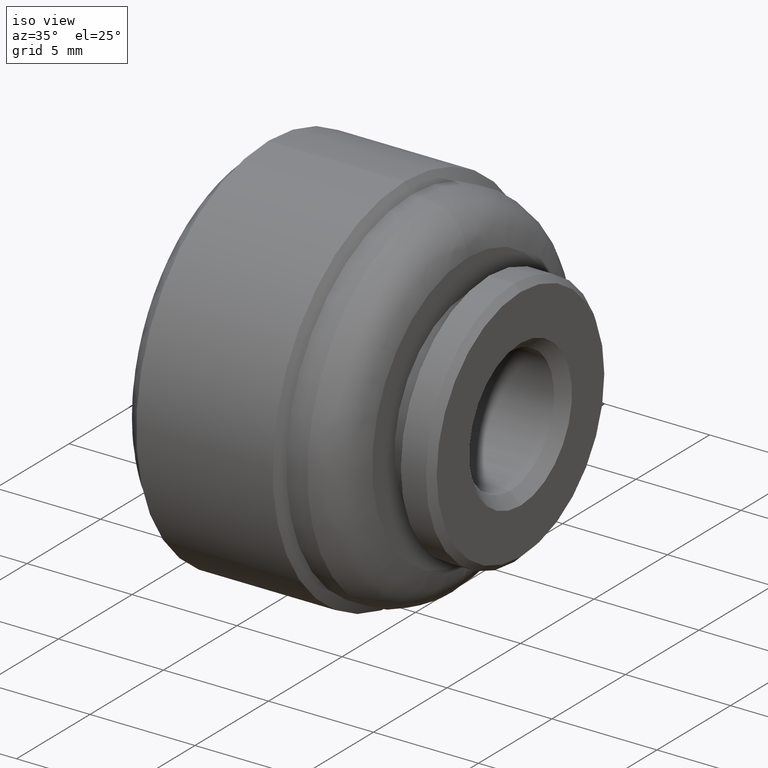
[diagram: clean part render]
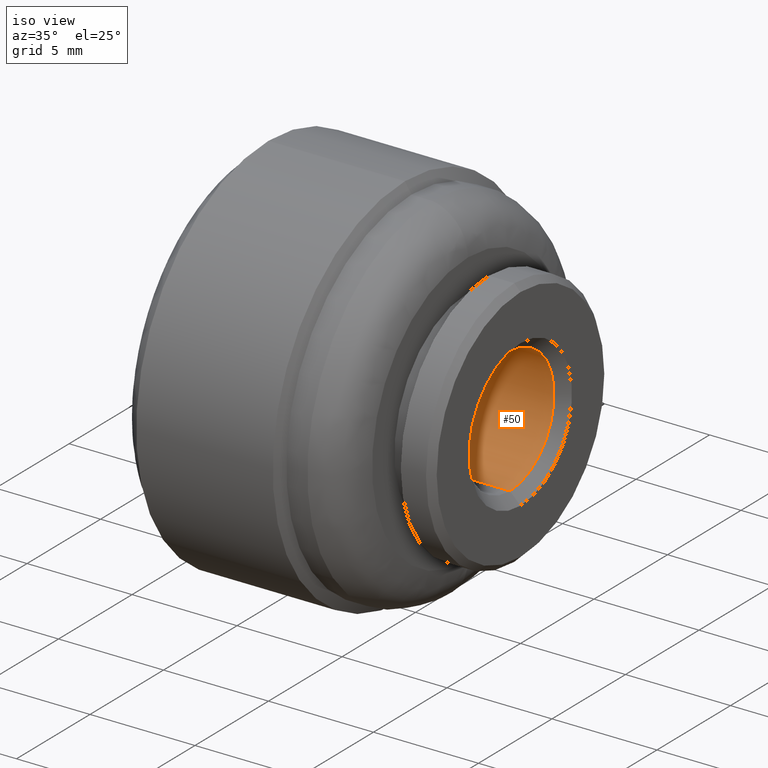
[diagram: same view with one face highlighted and labeled with its STEP entity id]
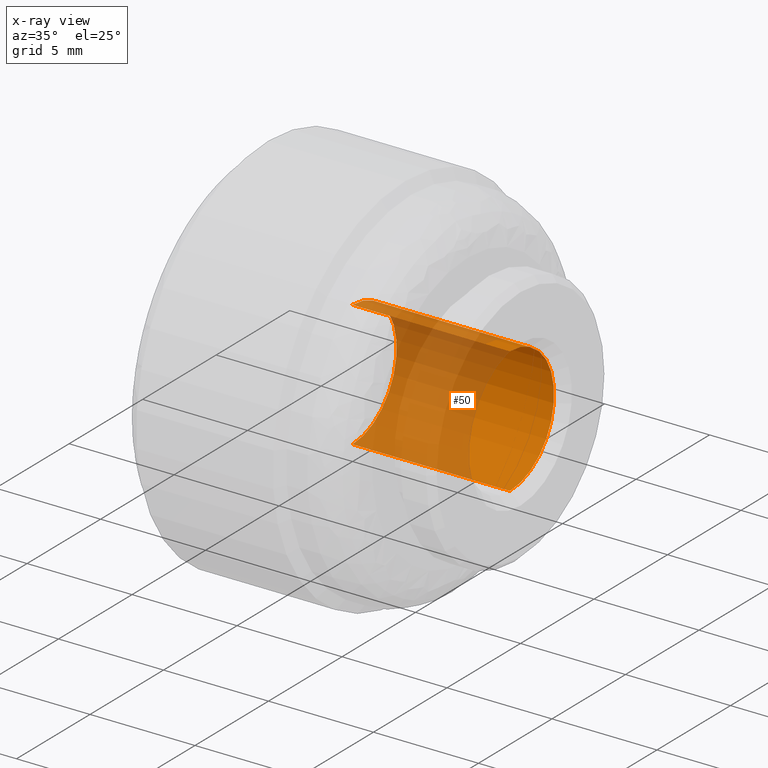
[diagram: x-ray of the same camera — body ghosted, the highlighted face saturated]
A machine part, iso view. The second image highlights one B-rep face of the part: STEP entity #50.
The next image is the same camera in x-ray: the body ghosted, the highlighted face saturated — about 62% of this face is hidden behind the body in this view.
In plain terms, the highlighted cylindrical surface (partial cylindrical patch) has radius 3 mm, axis along (1, -0, -0).
Its self-contained STEP definition (entity closure, byte-faithful):
#50=ADVANCED_FACE('',(#176),#175,.F.);
#175=CYLINDRICAL_SURFACE('',#475,3.00000000000E+00);
#176=FACE_OUTER_BOUND('',#476,.T.);
#472=CARTESIAN_POINT('',(0.00000000000E+00,0.00000000000E+00,0.00000000000E+00));
#473=DIRECTION('',(1.00000000000E+00,-0.00000000000E+00,-0.00000000000E+00));
#474=DIRECTION('',(-0.00000000000E+00,-0.00000000000E+00,-1.00000000000E+00));
#475=AXIS2_PLACEMENT_3D('',#472,#473,#474);
#476=EDGE_LOOP('',(#750,#751,#752,#753));
#750=ORIENTED_EDGE('',*,*,#863,.T.);
#751=ORIENTED_EDGE('',*,*,#864,.T.);
#752=ORIENTED_EDGE('',*,*,#865,.F.);
#753=ORIENTED_EDGE('',*,*,#866,.F.);
#863=EDGE_CURVE('',#1051,#1058,#1071,.T.);
#864=EDGE_CURVE('',#1058,#1077,#1078,.T.);
#865=EDGE_CURVE('',#1084,#1077,#1085,.T.);
#866=EDGE_CURVE('',#1051,#1084,#1091,.T.);
#1051=VERTEX_POINT('',#1406);
#1058=VERTEX_POINT('',#1409);
#1071=CIRCLE('',#1419,3.00000000000E+00);
#1077=VERTEX_POINT('',#1420);
#1078=(BOUNDED_CURVE() B_SPLINE_CURVE(1,(#1421,#1422),.UNSPECIFIED.,.F.,.F.) B_SPLINE_CURVE_WITH_KNOTS((2,2),(8.33333366442E-02,9.16666667899E-01),.UNSPECIFIED.) CURVE() GEOMETRIC_REPRESENTATION_ITEM() RATIONAL_B_SPLINE_CURVE((1.00000000000E+00,1.00000000000E+00)) REPRESENTATION_ITEM('') );
#1084=VERTEX_POINT('',#1423);
#1085=CIRCLE('',#1427,3.00000000000E+00);
#1091=(BOUNDED_CURVE() B_SPLINE_CURVE(1,(#1428,#1429),.UNSPECIFIED.,.F.,.F.) B_SPLINE_CURVE_WITH_KNOTS((2,2),(8.33333333333E-02,9.16666666667E-01),.UNSPECIFIED.) CURVE() GEOMETRIC_REPRESENTATION_ITEM() RATIONAL_B_SPLINE_CURVE((7.50000000000E-01,7.50000000000E-01)) REPRESENTATION_ITEM('') );
#1406=CARTESIAN_POINT('',(-8.00000000000E+00,0.00000000000E+00,3.00000000000E+00));
#1409=CARTESIAN_POINT('',(-8.00000000000E+00,-1.48029736617E-16,-3.00000000000E+00));
#1416=CARTESIAN_POINT('',(-8.00000000000E+00,0.00000000000E+00,0.00000000000E+00));
#1417=DIRECTION('',(-1.00000000000E+00,0.00000000000E+00,0.00000000000E+00));
#1418=DIRECTION('',(0.00000000000E+00,-1.22460635382E-16,1.00000000000E+00));
#1419=AXIS2_PLACEMENT_3D('',#1416,#1417,#1418);
#1420=CARTESIAN_POINT('',(-5.00000000000E-01,-1.48029736617E-16,-3.00000000000E+00));
#1421=CARTESIAN_POINT('',(-7.99999997020E+00,0.00000000000E+00,-3.00000000000E+00));
#1422=CARTESIAN_POINT('',(-4.99999988905E-01,0.00000000000E+00,-3.00000000000E+00));
#1423=CARTESIAN_POINT('',(-5.00000000000E-01,0.00000000000E+00,3.00000000000E+00));
#1424=CARTESIAN_POINT('',(-5.00000000000E-01,0.00000000000E+00,0.00000000000E+00));
#1425=DIRECTION('',(-1.00000000000E+00,0.00000000000E+00,0.00000000000E+00));
#1426=DIRECTION('',(0.00000000000E+00,-1.22460635382E-16,1.00000000000E+00));
#1427=AXIS2_PLACEMENT_3D('',#1424,#1425,#1426);
#1428=CARTESIAN_POINT('',(-8.00000000000E+00,-1.48029736617E-16,3.00000000000E+00));
#1429=CARTESIAN_POINT('',(-5.00000000000E-01,-1.48029736617E-16,3.00000000000E+00));